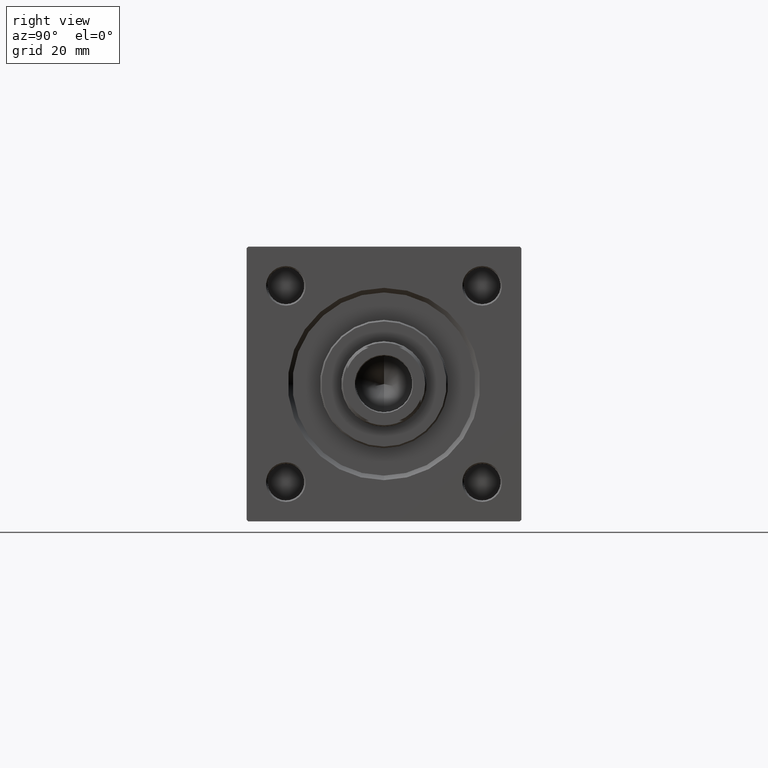
[diagram: clean part render]
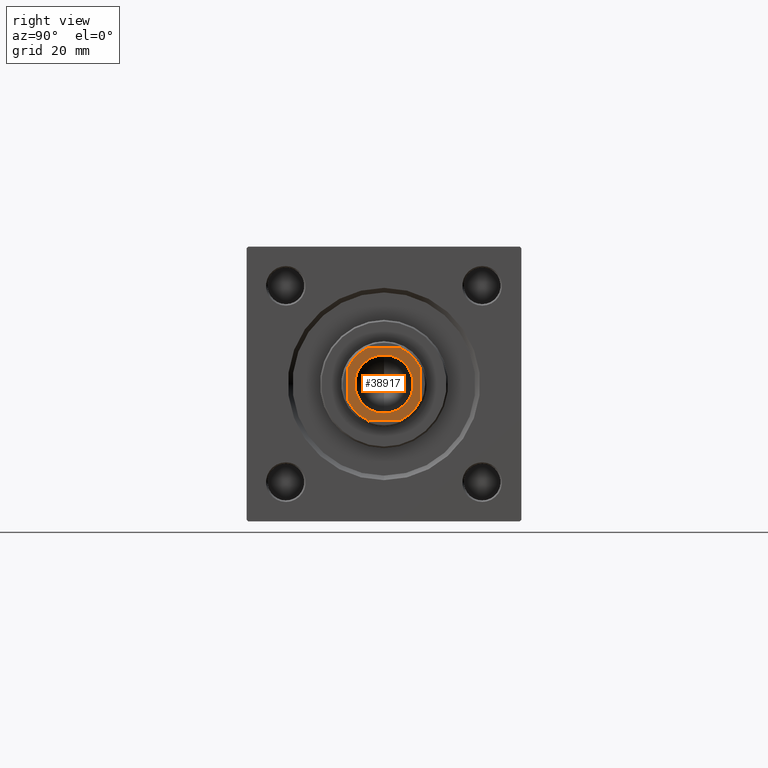
[diagram: same view with one face highlighted and labeled with its STEP entity id]
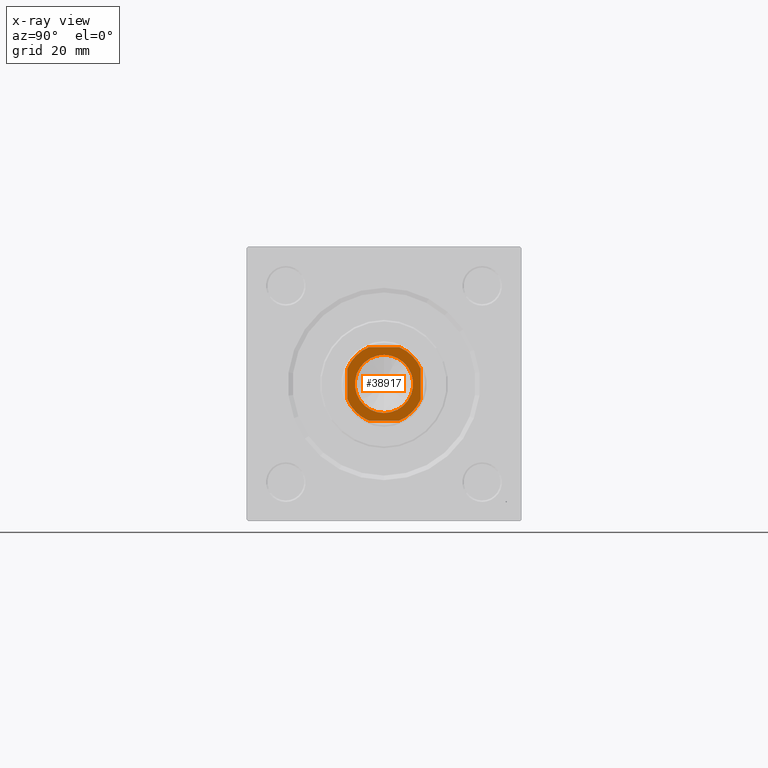
[diagram: x-ray of the same camera — body ghosted, the highlighted face saturated]
A machine part, right view. The second image highlights one B-rep face of the part: STEP entity #38917.
The next image is the same camera in x-ray: the body ghosted, the highlighted face saturated — about 0% of this face is hidden behind the body in this view.
In plain terms, the highlighted planar face has unit normal (1, 0, -0).
Its self-contained STEP definition (entity closure, byte-faithful):
#588 = DIRECTION ( 'NONE',  ( 1.000000000000000000, 0.000000000000000000, 0.000000000000000000 ) ) ;
#766 = CARTESIAN_POINT ( 'NONE',  ( -5.000000000000109246, 12.00000000000000000, 150.0000000000000000 ) ) ;
#836 = DIRECTION ( 'NONE',  ( -0.000000000000000000, 0.000000000000000000, 1.000000000000000000 ) ) ;
#1566 = ORIENTED_EDGE ( 'NONE', *, *, #4840, .T. ) ;
#1827 = VERTEX_POINT ( 'NONE', #26839 ) ;
#2900 = VERTEX_POINT ( 'NONE', #16863 ) ;
#3456 = VECTOR ( 'NONE', #50226, 1000.000000000000000 ) ;
#3472 = LINE ( 'NONE', #14915, #39232 ) ;
#3528 = ORIENTED_EDGE ( 'NONE', *, *, #20659, .T. ) ;
#4000 = AXIS2_PLACEMENT_3D ( 'NONE', #16092, #836, #588 ) ;
#4274 = DIRECTION ( 'NONE',  ( 0.000000000000000000, -0.000000000000000000, -1.000000000000000000 ) ) ;
#4383 = CARTESIAN_POINT ( 'NONE',  ( -11.99999999999999822, 5.000000000000111022, 150.0000000000000000 ) ) ;
#4840 = EDGE_CURVE ( 'NONE', #1827, #46397, #38795, .T. ) ;
#6029 = AXIS2_PLACEMENT_3D ( 'NONE', #27043, #36661, #28793 ) ;
#6329 = EDGE_CURVE ( 'NONE', #11426, #39424, #41289, .T. ) ;
#6361 = AXIS2_PLACEMENT_3D ( 'NONE', #30935, #4274, #39055 ) ;
#7373 = CIRCLE ( 'NONE', #17941, 9.550000000000030909 ) ;
#7810 = DIRECTION ( 'NONE',  ( 1.000000000000000000, 0.000000000000000000, 0.000000000000000000 ) ) ;
#7817 = CARTESIAN_POINT ( 'NONE',  ( 12.00000000000000000, 12.00000000000000000, 150.0000000000000000 ) ) ;
#8312 = LINE ( 'NONE', #7817, #3456 ) ;
#9650 = DIRECTION ( 'NONE',  ( -0.000000000000000000, 0.000000000000000000, 1.000000000000000000 ) ) ;
#10176 = CARTESIAN_POINT ( 'NONE',  ( 5.000000000000087930, -12.00000000000000000, 150.0000000000000000 ) ) ;
#10493 = LINE ( 'NONE', #25992, #40635 ) ;
#11097 = ORIENTED_EDGE ( 'NONE', *, *, #13144, .T. ) ;
#11426 = VERTEX_POINT ( 'NONE', #27156 ) ;
#11615 = CARTESIAN_POINT ( 'NONE',  ( 0.000000000000000000, 0.000000000000000000, 150.0000000000000000 ) ) ;
#11760 = CARTESIAN_POINT ( 'NONE',  ( 0.000000000000000000, 0.000000000000000000, 150.0000000000000000 ) ) ;
#12195 = AXIS2_PLACEMENT_3D ( 'NONE', #29458, #9650, #14235 ) ;
#12260 = LINE ( 'NONE', #24442, #36216 ) ;
#13100 = AXIS2_PLACEMENT_3D ( 'NONE', #49002, #49499, #30205 ) ;
#13144 = EDGE_CURVE ( 'NONE', #36360, #11426, #8312, .T. ) ;
#13809 = DIRECTION ( 'NONE',  ( 1.000000000000000000, 0.000000000000000000, 0.000000000000000000 ) ) ;
#14235 = DIRECTION ( 'NONE',  ( 1.000000000000000000, 0.000000000000000000, 0.000000000000000000 ) ) ;
#14668 = CARTESIAN_POINT ( 'NONE',  ( 4.999999999999882760, 12.00000000000000000, 150.0000000000000000 ) ) ;
#14915 = CARTESIAN_POINT ( 'NONE',  ( -12.00000000000000000, 12.00000000000000000, 150.0000000000000000 ) ) ;
#16092 = CARTESIAN_POINT ( 'NONE',  ( 0.000000000000000000, 0.000000000000000000, 150.0000000000000000 ) ) ;
#16863 = CARTESIAN_POINT ( 'NONE',  ( -11.99999999999999822, -5.000000000000092371, 150.0000000000000000 ) ) ;
#16894 = EDGE_LOOP ( 'NONE', ( #1566, #25904 ) ) ;
#17030 = PLANE ( 'NONE',  #12195 ) ;
#17941 = AXIS2_PLACEMENT_3D ( 'NONE', #11615, #27111, #7810 ) ;
#18050 = FACE_OUTER_BOUND ( 'NONE', #34440, .T. ) ;
#18069 = VERTEX_POINT ( 'NONE', #10176 ) ;
#19229 = AXIS2_PLACEMENT_3D ( 'NONE', #11760, #30562, #24633 ) ;
#20659 = EDGE_CURVE ( 'NONE', #42226, #24386, #25501, .T. ) ;
#23026 = DIRECTION ( 'NONE',  ( -1.000000000000000000, -0.000000000000000000, -0.000000000000000000 ) ) ;
#23569 = ORIENTED_EDGE ( 'NONE', *, *, #48100, .T. ) ;
#23884 = CARTESIAN_POINT ( 'NONE',  ( 12.00000000000000000, -5.000000000000087930, 150.0000000000000000 ) ) ;
#24201 = DIRECTION ( 'NONE',  ( 1.445602896647339163E-16, -1.000000000000000000, 0.000000000000000000 ) ) ;
#24386 = VERTEX_POINT ( 'NONE', #4383 ) ;
#24442 = CARTESIAN_POINT ( 'NONE',  ( -12.00000000000000000, 12.00000000000000000, 150.0000000000000000 ) ) ;
#24633 = DIRECTION ( 'NONE',  ( 1.000000000000000000, 0.000000000000000000, 0.000000000000000000 ) ) ;
#25501 = CIRCLE ( 'NONE', #6029, 13.00000000000004263 ) ;
#25904 = ORIENTED_EDGE ( 'NONE', *, *, #40589, .T. ) ;
#25992 = CARTESIAN_POINT ( 'NONE',  ( -11.99999999999999645, -12.00000000000000000, 150.0000000000000000 ) ) ;
#26322 = EDGE_CURVE ( 'NONE', #24386, #2900, #12260, .T. ) ;
#26839 = CARTESIAN_POINT ( 'NONE',  ( 9.550000000000030909, 0.000000000000000000, 150.0000000000000000 ) ) ;
#27043 = CARTESIAN_POINT ( 'NONE',  ( 0.000000000000000000, 0.000000000000000000, 150.0000000000000000 ) ) ;
#27111 = DIRECTION ( 'NONE',  ( 0.000000000000000000, -0.000000000000000000, -1.000000000000000000 ) ) ;
#27156 = CARTESIAN_POINT ( 'NONE',  ( 12.00000000000000000, 4.999999999999881872, 150.0000000000000000 ) ) ;
#27256 = EDGE_CURVE ( 'NONE', #2900, #39601, #28020, .T. ) ;
#28020 = CIRCLE ( 'NONE', #19229, 13.00000000000003375 ) ;
#28793 = DIRECTION ( 'NONE',  ( 1.000000000000000000, 0.000000000000000000, 0.000000000000000000 ) ) ;
#29458 = CARTESIAN_POINT ( 'NONE',  ( 0.000000000000000000, 0.000000000000000000, 150.0000000000000000 ) ) ;
#30205 = DIRECTION ( 'NONE',  ( 1.000000000000000000, 0.000000000000000000, 0.000000000000000000 ) ) ;
#30562 = DIRECTION ( 'NONE',  ( -0.000000000000000000, 0.000000000000000000, 1.000000000000000000 ) ) ;
#30935 = CARTESIAN_POINT ( 'NONE',  ( 0.000000000000000000, 0.000000000000000000, 150.0000000000000000 ) ) ;
#32101 = ORIENTED_EDGE ( 'NONE', *, *, #41051, .T. ) ;
#34397 = ORIENTED_EDGE ( 'NONE', *, *, #27256, .T. ) ;
#34440 = EDGE_LOOP ( 'NONE', ( #11097, #41750, #23569, #3528, #36257, #34397, #32101, #44157 ) ) ;
#34479 = CARTESIAN_POINT ( 'NONE',  ( -9.550000000000030909, 1.169537693185726108E-15, 150.0000000000000000 ) ) ;
#35009 = CIRCLE ( 'NONE', #13100, 13.00000000000003375 ) ;
#36216 = VECTOR ( 'NONE', #24201, 1000.000000000000000 ) ;
#36257 = ORIENTED_EDGE ( 'NONE', *, *, #26322, .T. ) ;
#36360 = VERTEX_POINT ( 'NONE', #23884 ) ;
#36661 = DIRECTION ( 'NONE',  ( -0.000000000000000000, 0.000000000000000000, 1.000000000000000000 ) ) ;
#38795 = CIRCLE ( 'NONE', #6361, 9.550000000000030909 ) ;
#38917 = ADVANCED_FACE ( 'NONE', ( #49012, #18050 ), #17030, .T. ) ;
#39055 = DIRECTION ( 'NONE',  ( 1.000000000000000000, 0.000000000000000000, 0.000000000000000000 ) ) ;
#39232 = VECTOR ( 'NONE', #23026, 1000.000000000000000 ) ;
#39424 = VERTEX_POINT ( 'NONE', #14668 ) ;
#39601 = VERTEX_POINT ( 'NONE', #46066 ) ;
#40589 = EDGE_CURVE ( 'NONE', #46397, #1827, #7373, .T. ) ;
#40635 = VECTOR ( 'NONE', #13809, 1000.000000000000000 ) ;
#41051 = EDGE_CURVE ( 'NONE', #39601, #18069, #10493, .T. ) ;
#41289 = CIRCLE ( 'NONE', #4000, 12.99999999999995381 ) ;
#41750 = ORIENTED_EDGE ( 'NONE', *, *, #6329, .T. ) ;
#42226 = VERTEX_POINT ( 'NONE', #766 ) ;
#43113 = EDGE_CURVE ( 'NONE', #18069, #36360, #35009, .T. ) ;
#44157 = ORIENTED_EDGE ( 'NONE', *, *, #43113, .T. ) ;
#46066 = CARTESIAN_POINT ( 'NONE',  ( -5.000000000000087930, -12.00000000000000000, 150.0000000000000000 ) ) ;
#46397 = VERTEX_POINT ( 'NONE', #34479 ) ;
#48100 = EDGE_CURVE ( 'NONE', #39424, #42226, #3472, .T. ) ;
#49002 = CARTESIAN_POINT ( 'NONE',  ( 0.000000000000000000, 0.000000000000000000, 150.0000000000000000 ) ) ;
#49012 = FACE_BOUND ( 'NONE', #16894, .T. ) ;
#49499 = DIRECTION ( 'NONE',  ( -0.000000000000000000, 0.000000000000000000, 1.000000000000000000 ) ) ;
#50226 = DIRECTION ( 'NONE',  ( -0.000000000000000000, 1.000000000000000000, -0.000000000000000000 ) ) ;